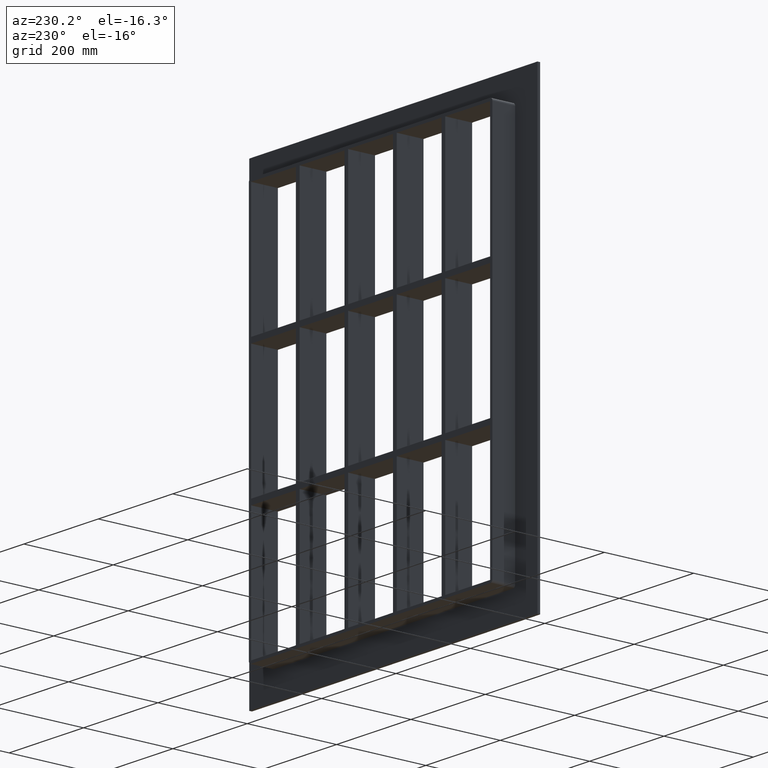
[diagram: clean part render]
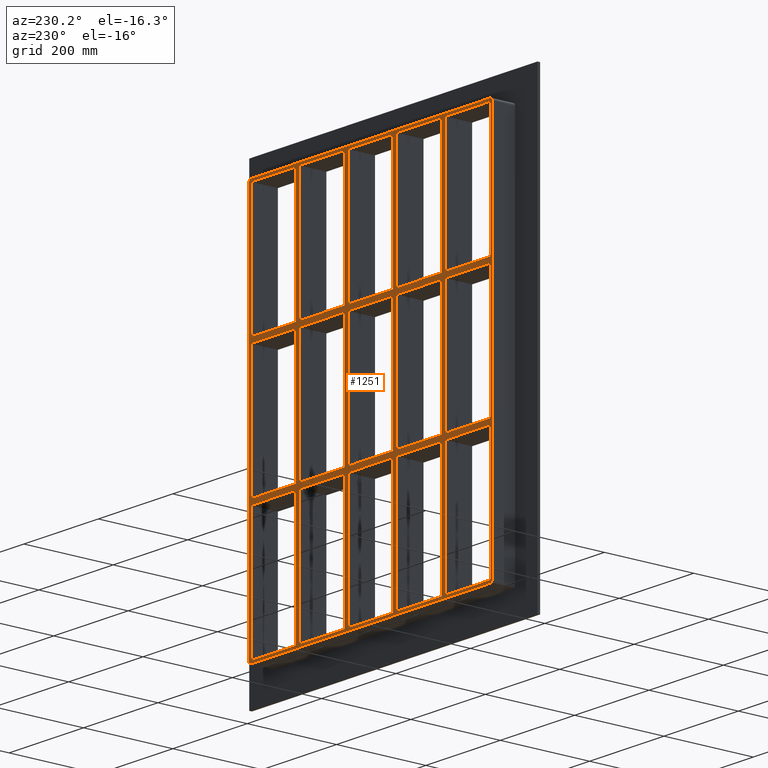
[diagram: same view with one face highlighted and labeled with its STEP entity id]
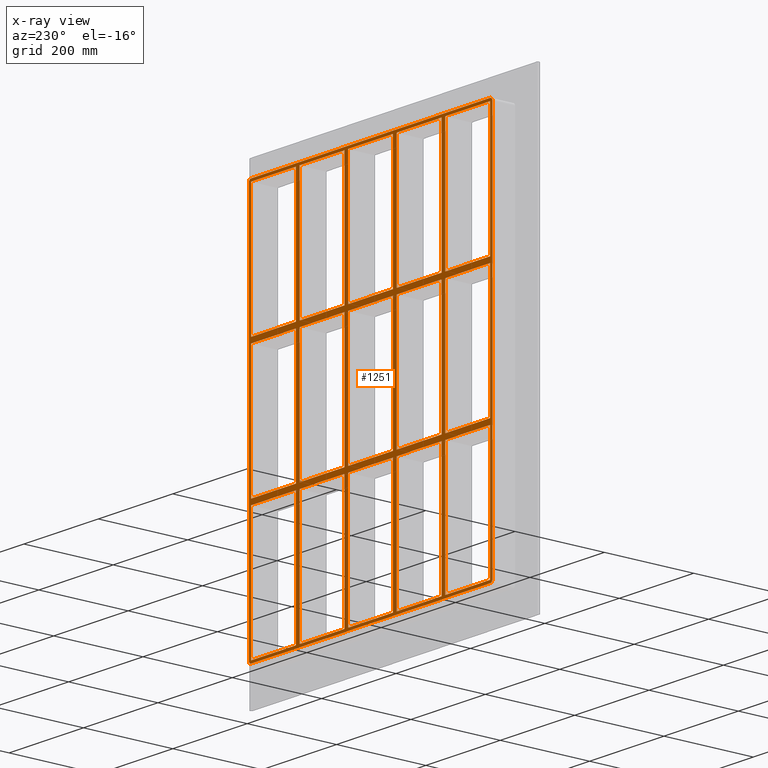
[diagram: x-ray of the same camera — body ghosted, the highlighted face saturated]
A machine part, auxiliary view. The second image highlights one B-rep face of the part: STEP entity #1251.
The next image is the same camera in x-ray: the body ghosted, the highlighted face saturated — about 0% of this face is hidden behind the body in this view.
In plain terms, the highlighted planar face has unit normal (0, 1, 0).
Its self-contained STEP definition (entity closure, byte-faithful):
#75=CARTESIAN_POINT('',(-200.75000000000128,57.0,138.99999999999068));
#76=VERTEX_POINT('',#75);
#91=CARTESIAN_POINT('',(-321.24999999999955,57.0,138.99999999999068));
#92=VERTEX_POINT('',#91);
#99=CARTESIAN_POINT('',(-200.75000000000136,57.0,138.99999999999068));
#100=DIRECTION('',(-1.0,0.0,0.0));
#101=VECTOR('',#100,120.49999999999818);
#102=LINE('',#99,#101);
#103=EDGE_CURVE('',#76,#92,#102,.T.);
#115=CARTESIAN_POINT('',(-70.250000000001265,57.0,138.99999999999071));
#116=VERTEX_POINT('',#115);
#131=CARTESIAN_POINT('',(-190.75000000000728,57.0,138.99999999999071));
#132=VERTEX_POINT('',#131);
#139=CARTESIAN_POINT('',(-70.250000000001251,57.0,138.99999999999071));
#140=DIRECTION('',(-1.0,0.0,0.0));
#141=VECTOR('',#140,120.50000000000603);
#142=LINE('',#139,#141);
#143=EDGE_CURVE('',#116,#132,#142,.T.);
#155=CARTESIAN_POINT('',(60.249999999998742,57.0,138.99999999999071));
#156=VERTEX_POINT('',#155);
#171=CARTESIAN_POINT('',(-60.250000000007304,57.0,138.99999999999071));
#172=VERTEX_POINT('',#171);
#179=CARTESIAN_POINT('',(60.249999999998749,57.0,138.99999999999071));
#180=DIRECTION('',(-1.0,0.0,0.0));
#181=VECTOR('',#180,120.50000000000603);
#182=LINE('',#179,#181);
#183=EDGE_CURVE('',#156,#172,#182,.T.);
#193=CARTESIAN_POINT('',(200.74999999999278,57.0,138.99999999999071));
#194=VERTEX_POINT('',#193);
#203=CARTESIAN_POINT('',(321.25,57.0,138.99999999999073));
#204=VERTEX_POINT('',#203);
#205=CARTESIAN_POINT('',(321.25,57.0,138.99999999999073));
#206=DIRECTION('',(-1.0,0.0,0.0));
#207=VECTOR('',#206,120.50000000000722);
#208=LINE('',#205,#207);
#209=EDGE_CURVE('',#204,#194,#208,.T.);
#235=CARTESIAN_POINT('',(190.74999999999875,57.0,138.99999999999071));
#236=VERTEX_POINT('',#235);
#251=CARTESIAN_POINT('',(70.249999999992738,57.0,138.99999999999071));
#252=VERTEX_POINT('',#251);
#259=CARTESIAN_POINT('',(190.74999999999875,57.0,138.99999999999073));
#260=DIRECTION('',(-1.0,0.0,0.0));
#261=VECTOR('',#260,120.50000000000603);
#262=LINE('',#259,#261);
#263=EDGE_CURVE('',#236,#252,#262,.T.);
#273=CARTESIAN_POINT('',(-200.75000000000128,57.0,150.99999999999994));
#274=VERTEX_POINT('',#273);
#283=CARTESIAN_POINT('',(-321.24999999999955,57.0,150.99999999999994));
#284=VERTEX_POINT('',#283);
#285=CARTESIAN_POINT('',(-321.24999999999955,57.0,150.99999999999994));
#286=DIRECTION('',(1.0,0.0,0.0));
#287=VECTOR('',#286,120.49999999999829);
#288=LINE('',#285,#287);
#289=EDGE_CURVE('',#284,#274,#288,.T.);
#315=CARTESIAN_POINT('',(200.74999999999278,57.0,150.99999999999994));
#316=VERTEX_POINT('',#315);
#331=CARTESIAN_POINT('',(321.25,57.0,150.99999999999994));
#332=VERTEX_POINT('',#331);
#339=CARTESIAN_POINT('',(200.74999999999284,57.0,150.99999999999994));
#340=DIRECTION('',(1.0,0.0,0.0));
#341=VECTOR('',#340,120.50000000000716);
#342=LINE('',#339,#341);
#343=EDGE_CURVE('',#316,#332,#342,.T.);
#353=CARTESIAN_POINT('',(-70.250000000001265,57.0,150.99999999999994));
#354=VERTEX_POINT('',#353);
#363=CARTESIAN_POINT('',(-190.75000000000728,57.0,150.99999999999994));
#364=VERTEX_POINT('',#363);
#365=CARTESIAN_POINT('',(-190.75000000000725,57.0,150.99999999999994));
#366=DIRECTION('',(1.0,0.0,0.0));
#367=VECTOR('',#366,120.500000000006);
#368=LINE('',#365,#367);
#369=EDGE_CURVE('',#364,#354,#368,.T.);
#393=CARTESIAN_POINT('',(60.249999999998707,57.0,150.99999999999994));
#394=VERTEX_POINT('',#393);
#403=CARTESIAN_POINT('',(-60.250000000007269,57.0,150.99999999999994));
#404=VERTEX_POINT('',#403);
#405=CARTESIAN_POINT('',(-60.250000000007219,57.0,150.99999999999994));
#406=DIRECTION('',(1.0,0.0,0.0));
#407=VECTOR('',#406,120.50000000000597);
#408=LINE('',#405,#407);
#409=EDGE_CURVE('',#404,#394,#408,.T.);
#433=CARTESIAN_POINT('',(190.74999999999875,57.0,150.99999999999994));
#434=VERTEX_POINT('',#433);
#443=CARTESIAN_POINT('',(70.249999999992738,57.0,150.99999999999994));
#444=VERTEX_POINT('',#443);
#445=CARTESIAN_POINT('',(70.249999999992781,57.0,150.99999999999994));
#446=DIRECTION('',(1.0,0.0,0.0));
#447=VECTOR('',#446,120.50000000000597);
#448=LINE('',#445,#447);
#449=EDGE_CURVE('',#444,#434,#448,.T.);
#474=CARTESIAN_POINT('',(-321.24999999999994,57.0,429.00000000000006));
#475=VERTEX_POINT('',#474);
#476=CARTESIAN_POINT('',(-321.25,57.0,429.00000000000011));
#477=DIRECTION('',(0.0,0.0,-1.0));
#478=VECTOR('',#477,278.00000000000011);
#479=LINE('',#476,#478);
#480=EDGE_CURVE('',#475,#284,#479,.T.);
#505=CARTESIAN_POINT('',(321.25,57.0,-139.00000000000006));
#506=VERTEX_POINT('',#505);
#507=CARTESIAN_POINT('',(321.25000000000006,57.0,-139.00000000000006));
#508=DIRECTION('',(0.0,0.0,1.0));
#509=VECTOR('',#508,277.99999999999079);
#510=LINE('',#507,#509);
#511=EDGE_CURVE('',#506,#204,#510,.T.);
#544=CARTESIAN_POINT('',(321.25000000000006,57.0,429.00000000000006));
#545=VERTEX_POINT('',#544);
#552=CARTESIAN_POINT('',(321.25000000000006,57.0,150.99999999999994));
#553=DIRECTION('',(0.0,0.0,1.0));
#554=VECTOR('',#553,278.00000000000011);
#555=LINE('',#552,#554);
#556=EDGE_CURVE('',#332,#545,#555,.T.);
#575=CARTESIAN_POINT('',(190.74999999999875,57.0,429.00000000000006));
#576=VERTEX_POINT('',#575);
#583=CARTESIAN_POINT('',(190.74999999999875,57.0,150.99999999999994));
#584=DIRECTION('',(0.0,0.0,1.0));
#585=VECTOR('',#584,278.00000000000011);
#586=LINE('',#583,#585);
#587=EDGE_CURVE('',#434,#576,#586,.T.);
#598=CARTESIAN_POINT('',(200.74999999999278,57.0,429.00000000000006));
#599=VERTEX_POINT('',#598);
#600=CARTESIAN_POINT('',(200.74999999999278,57.0,429.00000000000006));
#601=DIRECTION('',(0.0,0.0,-1.0));
#602=VECTOR('',#601,278.00000000000011);
#603=LINE('',#600,#602);
#604=EDGE_CURVE('',#599,#316,#603,.T.);
#637=CARTESIAN_POINT('',(60.249999999998707,57.0,429.00000000000006));
#638=VERTEX_POINT('',#637);
#645=CARTESIAN_POINT('',(60.249999999998728,57.0,150.99999999999994));
#646=DIRECTION('',(0.0,0.0,1.0));
#647=VECTOR('',#646,278.00000000000011);
#648=LINE('',#645,#647);
#649=EDGE_CURVE('',#394,#638,#648,.T.);
#660=CARTESIAN_POINT('',(70.249999999992738,57.0,429.00000000000006));
#661=VERTEX_POINT('',#660);
#662=CARTESIAN_POINT('',(70.249999999992738,57.0,429.00000000000006));
#663=DIRECTION('',(0.0,0.0,-1.0));
#664=VECTOR('',#663,278.00000000000011);
#665=LINE('',#662,#664);
#666=EDGE_CURVE('',#661,#444,#665,.T.);
#699=CARTESIAN_POINT('',(-70.250000000001307,57.0,429.00000000000006));
#700=VERTEX_POINT('',#699);
#707=CARTESIAN_POINT('',(-70.250000000001265,57.0,150.99999999999994));
#708=DIRECTION('',(0.0,0.0,1.0));
#709=VECTOR('',#708,278.00000000000011);
#710=LINE('',#707,#709);
#711=EDGE_CURVE('',#354,#700,#710,.T.);
#722=CARTESIAN_POINT('',(-60.250000000007269,57.0,429.00000000000006));
#723=VERTEX_POINT('',#722);
#724=CARTESIAN_POINT('',(-60.250000000007269,57.0,429.00000000000006));
#725=DIRECTION('',(0.0,0.0,-1.0));
#726=VECTOR('',#725,278.00000000000011);
#727=LINE('',#724,#726);
#728=EDGE_CURVE('',#723,#404,#727,.T.);
#761=CARTESIAN_POINT('',(-200.75000000000131,57.0,429.00000000000006));
#762=VERTEX_POINT('',#761);
#769=CARTESIAN_POINT('',(-200.75000000000131,57.0,150.99999999999994));
#770=DIRECTION('',(0.0,0.0,1.0));
#771=VECTOR('',#770,278.00000000000011);
#772=LINE('',#769,#771);
#773=EDGE_CURVE('',#274,#762,#772,.T.);
#784=CARTESIAN_POINT('',(-200.75000000000125,57.0,-139.00000000000006));
#785=VERTEX_POINT('',#784);
#786=CARTESIAN_POINT('',(-200.75000000000128,57.0,-139.00000000000006));
#787=DIRECTION('',(0.0,0.0,1.0));
#788=VECTOR('',#787,277.99999999999068);
#789=LINE('',#786,#788);
#790=EDGE_CURVE('',#785,#76,#789,.T.);
#815=CARTESIAN_POINT('',(-190.75000000000728,57.0,429.00000000000006));
#816=VERTEX_POINT('',#815);
#817=CARTESIAN_POINT('',(-190.75000000000728,57.0,429.00000000000006));
#818=DIRECTION('',(0.0,0.0,-1.0));
#819=VECTOR('',#818,278.00000000000011);
#820=LINE('',#817,#819);
#821=EDGE_CURVE('',#816,#364,#820,.T.);
#840=CARTESIAN_POINT('',(-7.118245E-014,57.0,7.830186E-014));
#841=DIRECTION('',(0.0,1.0,0.0));
#842=DIRECTION('',(0.0,0.0,1.0));
#843=AXIS2_PLACEMENT_3D('',#840,#841,#842);
#844=PLANE('',#843);
#845=CARTESIAN_POINT('',(321.25,57.0,-435.0));
#846=VERTEX_POINT('',#845);
#847=CARTESIAN_POINT('',(327.24999999999994,57.0,-428.99999999999989));
#848=VERTEX_POINT('',#847);
#849=CARTESIAN_POINT('',(321.25,57.0,-428.99999999999989));
#850=DIRECTION('',(0.0,-1.0,0.0));
#851=DIRECTION('',(0.707106781186539,0.0,-0.707106781186556));
#852=AXIS2_PLACEMENT_3D('',#849,#850,#851);
#853=CIRCLE('',#852,6.000000000000001);
#854=EDGE_CURVE('',#846,#848,#853,.T.);
#855=ORIENTED_EDGE('',*,*,#854,.F.);
#856=CARTESIAN_POINT('',(-321.25,57.0,-435.0));
#857=VERTEX_POINT('',#856);
#858=CARTESIAN_POINT('',(321.25,57.0,-435.0));
#859=DIRECTION('',(-1.0,0.0,0.0));
#860=VECTOR('',#859,642.5);
#861=LINE('',#858,#860);
#862=EDGE_CURVE('',#846,#857,#861,.T.);
#863=ORIENTED_EDGE('',*,*,#862,.T.);
#864=CARTESIAN_POINT('',(-327.25000000000011,57.0,-429.00000000000006));
#865=VERTEX_POINT('',#864);
#866=CARTESIAN_POINT('',(-321.25,57.0,-429.00000000000006));
#867=DIRECTION('',(0.0,-1.0,0.0));
#868=DIRECTION('',(-0.707106781186556,0.0,-0.707106781186539));
#869=AXIS2_PLACEMENT_3D('',#866,#867,#868);
#870=CIRCLE('',#869,6.000000000000001);
#871=EDGE_CURVE('',#865,#857,#870,.T.);
#872=ORIENTED_EDGE('',*,*,#871,.F.);
#873=CARTESIAN_POINT('',(-327.25000000000011,57.0,429.00000000000006));
#874=VERTEX_POINT('',#873);
#875=CARTESIAN_POINT('',(-327.25000000000011,57.0,-429.00000000000006));
#876=DIRECTION('',(0.0,0.0,1.0));
#877=VECTOR('',#876,858.0);
#878=LINE('',#875,#877);
#879=EDGE_CURVE('',#865,#874,#878,.T.);
#880=ORIENTED_EDGE('',*,*,#879,.T.);
#881=CARTESIAN_POINT('',(-321.25000000000011,57.0,435.00000000000011));
#882=VERTEX_POINT('',#881);
#883=CARTESIAN_POINT('',(-321.25000000000011,57.0,429.00000000000006));
#884=DIRECTION('',(0.0,-1.0,0.0));
#885=DIRECTION('',(-0.707106781186539,0.0,0.707106781186556));
#886=AXIS2_PLACEMENT_3D('',#883,#884,#885);
#887=CIRCLE('',#886,6.000000000000001);
#888=EDGE_CURVE('',#882,#874,#887,.T.);
#889=ORIENTED_EDGE('',*,*,#888,.F.);
#890=CARTESIAN_POINT('',(321.24999999999989,57.0,435.00000000000011));
#891=VERTEX_POINT('',#890);
#892=CARTESIAN_POINT('',(-321.25000000000017,57.0,435.00000000000011));
#893=DIRECTION('',(1.0,0.0,0.0));
#894=VECTOR('',#893,642.5);
#895=LINE('',#892,#894);
#896=EDGE_CURVE('',#882,#891,#895,.T.);
#897=ORIENTED_EDGE('',*,*,#896,.T.);
#898=CARTESIAN_POINT('',(327.24999999999994,57.0,429.00000000000011));
#899=VERTEX_POINT('',#898);
#900=CARTESIAN_POINT('',(321.24999999999989,57.0,429.00000000000011));
#901=DIRECTION('',(0.0,-1.0,0.0));
#902=DIRECTION('',(0.707106781186547,0.0,0.707106781186547));
#903=AXIS2_PLACEMENT_3D('',#900,#901,#902);
#904=CIRCLE('',#903,6.0);
#905=EDGE_CURVE('',#899,#891,#904,.T.);
#906=ORIENTED_EDGE('',*,*,#905,.F.);
#907=CARTESIAN_POINT('',(327.24999999999994,57.0,429.00000000000011));
#908=DIRECTION('',(0.0,0.0,-1.0));
#909=VECTOR('',#908,858.0);
#910=LINE('',#907,#909);
#911=EDGE_CURVE('',#899,#848,#910,.T.);
#912=ORIENTED_EDGE('',*,*,#911,.T.);
#913=EDGE_LOOP('',(#855,#863,#872,#880,#889,#897,#906,#912));
#914=FACE_OUTER_BOUND('',#913,.T.);
#915=CARTESIAN_POINT('',(-321.24999999999955,57.0,-139.00000000000006));
#916=VERTEX_POINT('',#915);
#917=CARTESIAN_POINT('',(-321.25,57.0,138.99999999999068));
#918=DIRECTION('',(0.0,0.0,-1.0));
#919=VECTOR('',#918,277.99999999999073);
#920=LINE('',#917,#919);
#921=EDGE_CURVE('',#92,#916,#920,.T.);
#922=ORIENTED_EDGE('',*,*,#921,.T.);
#923=CARTESIAN_POINT('',(-321.24999999999955,57.0,-139.00000000000006));
#924=DIRECTION('',(1.0,0.0,0.0));
#925=VECTOR('',#924,120.49999999999835);
#926=LINE('',#923,#925);
#927=EDGE_CURVE('',#916,#785,#926,.T.);
#928=ORIENTED_EDGE('',*,*,#927,.T.);
#929=ORIENTED_EDGE('',*,*,#790,.T.);
#930=ORIENTED_EDGE('',*,*,#103,.T.);
#931=EDGE_LOOP('',(#922,#928,#929,#930));
#932=FACE_BOUND('',#931,.T.);
#933=ORIENTED_EDGE('',*,*,#556,.T.);
#934=CARTESIAN_POINT('',(321.25000000000011,57.0,429.00000000000006));
#935=DIRECTION('',(-1.0,0.0,0.0));
#936=VECTOR('',#935,120.50000000000736);
#937=LINE('',#934,#936);
#938=EDGE_CURVE('',#545,#599,#937,.T.);
#939=ORIENTED_EDGE('',*,*,#938,.T.);
#940=ORIENTED_EDGE('',*,*,#604,.T.);
#941=ORIENTED_EDGE('',*,*,#343,.T.);
#942=EDGE_LOOP('',(#933,#939,#940,#941));
#943=FACE_BOUND('',#942,.T.);
#944=ORIENTED_EDGE('',*,*,#587,.T.);
#945=CARTESIAN_POINT('',(190.74999999999872,57.0,429.00000000000006));
#946=DIRECTION('',(-1.0,0.0,0.0));
#947=VECTOR('',#946,120.50000000000597);
#948=LINE('',#945,#947);
#949=EDGE_CURVE('',#576,#661,#948,.T.);
#950=ORIENTED_EDGE('',*,*,#949,.T.);
#951=ORIENTED_EDGE('',*,*,#666,.T.);
#952=ORIENTED_EDGE('',*,*,#449,.T.);
#953=EDGE_LOOP('',(#944,#950,#951,#952));
#954=FACE_BOUND('',#953,.T.);
#955=ORIENTED_EDGE('',*,*,#649,.T.);
#956=CARTESIAN_POINT('',(60.249999999998721,57.0,429.00000000000006));
#957=DIRECTION('',(-1.0,0.0,0.0));
#958=VECTOR('',#957,120.50000000000598);
#959=LINE('',#956,#958);
#960=EDGE_CURVE('',#638,#723,#959,.T.);
#961=ORIENTED_EDGE('',*,*,#960,.T.);
#962=ORIENTED_EDGE('',*,*,#728,.T.);
#963=ORIENTED_EDGE('',*,*,#409,.T.);
#964=EDGE_LOOP('',(#955,#961,#962,#963));
#965=FACE_BOUND('',#964,.T.);
#966=ORIENTED_EDGE('',*,*,#711,.T.);
#967=CARTESIAN_POINT('',(-70.250000000001293,57.0,429.00000000000006));
#968=DIRECTION('',(-1.0,0.0,0.0));
#969=VECTOR('',#968,120.50000000000598);
#970=LINE('',#967,#969);
#971=EDGE_CURVE('',#700,#816,#970,.T.);
#972=ORIENTED_EDGE('',*,*,#971,.T.);
#973=ORIENTED_EDGE('',*,*,#821,.T.);
#974=ORIENTED_EDGE('',*,*,#369,.T.);
#975=EDGE_LOOP('',(#966,#972,#973,#974));
#976=FACE_BOUND('',#975,.T.);
#977=ORIENTED_EDGE('',*,*,#209,.T.);
#978=CARTESIAN_POINT('',(200.74999999999278,57.0,-139.00000000000006));
#979=VERTEX_POINT('',#978);
#980=CARTESIAN_POINT('',(200.74999999999278,57.0,138.99999999999073));
#981=DIRECTION('',(0.0,0.0,-1.0));
#982=VECTOR('',#981,277.99999999999079);
#983=LINE('',#980,#982);
#984=EDGE_CURVE('',#194,#979,#983,.T.);
#985=ORIENTED_EDGE('',*,*,#984,.T.);
#986=CARTESIAN_POINT('',(200.74999999999284,57.0,-139.00000000000006));
#987=DIRECTION('',(1.0,0.0,0.0));
#988=VECTOR('',#987,120.50000000000716);
#989=LINE('',#986,#988);
#990=EDGE_CURVE('',#979,#506,#989,.T.);
#991=ORIENTED_EDGE('',*,*,#990,.T.);
#992=ORIENTED_EDGE('',*,*,#511,.T.);
#993=EDGE_LOOP('',(#977,#985,#991,#992));
#994=FACE_BOUND('',#993,.T.);
#995=ORIENTED_EDGE('',*,*,#263,.T.);
#996=CARTESIAN_POINT('',(70.249999999992738,57.0,-139.00000000000006));
#997=VERTEX_POINT('',#996);
#998=CARTESIAN_POINT('',(70.249999999992738,57.0,138.99999999999073));
#999=DIRECTION('',(0.0,0.0,-1.0));
#1000=VECTOR('',#999,277.99999999999079);
#1001=LINE('',#998,#1000);
#1002=EDGE_CURVE('',#252,#997,#1001,.T.);
#1003=ORIENTED_EDGE('',*,*,#1002,.T.);
#1004=CARTESIAN_POINT('',(190.74999999999878,57.0,-139.00000000000006));
#1005=VERTEX_POINT('',#1004);
#1006=CARTESIAN_POINT('',(70.249999999992781,57.0,-139.00000000000006));
#1007=DIRECTION('',(1.0,0.0,0.0));
#1008=VECTOR('',#1007,120.50000000000597);
#1009=LINE('',#1006,#1008);
#1010=EDGE_CURVE('',#997,#1005,#1009,.T.);
#1011=ORIENTED_EDGE('',*,*,#1010,.T.);
#1012=CARTESIAN_POINT('',(190.74999999999878,57.0,-139.00000000000006));
#1013=DIRECTION('',(0.0,0.0,1.0));
#1014=VECTOR('',#1013,277.99999999999068);
#1015=LINE('',#1012,#1014);
#1016=EDGE_CURVE('',#1005,#236,#1015,.T.);
#1017=ORIENTED_EDGE('',*,*,#1016,.T.);
#1018=EDGE_LOOP('',(#995,#1003,#1011,#1017));
#1019=FACE_BOUND('',#1018,.T.);
#1020=ORIENTED_EDGE('',*,*,#183,.T.);
#1021=CARTESIAN_POINT('',(-60.250000000007269,57.0,-139.00000000000006));
#1022=VERTEX_POINT('',#1021);
#1023=CARTESIAN_POINT('',(-60.250000000007269,57.0,138.99999999999068));
#1024=DIRECTION('',(0.0,0.0,-1.0));
#1025=VECTOR('',#1024,277.99999999999073);
#1026=LINE('',#1023,#1025);
#1027=EDGE_CURVE('',#172,#1022,#1026,.T.);
#1028=ORIENTED_EDGE('',*,*,#1027,.T.);
#1029=CARTESIAN_POINT('',(60.249999999998749,57.0,-139.00000000000006));
#1030=VERTEX_POINT('',#1029);
#1031=CARTESIAN_POINT('',(-60.250000000007219,57.0,-139.00000000000006));
#1032=DIRECTION('',(1.0,0.0,0.0));
#1033=VECTOR('',#1032,120.50000000000603);
#1034=LINE('',#1031,#1033);
#1035=EDGE_CURVE('',#1022,#1030,#1034,.T.);
#1036=ORIENTED_EDGE('',*,*,#1035,.T.);
#1037=CARTESIAN_POINT('',(60.249999999998757,57.0,-139.00000000000006));
#1038=DIRECTION('',(0.0,0.0,1.0));
#1039=VECTOR('',#1038,277.99999999999068);
#1040=LINE('',#1037,#1039);
#1041=EDGE_CURVE('',#1030,#156,#1040,.T.);
#1042=ORIENTED_EDGE('',*,*,#1041,.T.);
#1043=EDGE_LOOP('',(#1020,#1028,#1036,#1042));
#1044=FACE_BOUND('',#1043,.T.);
#1045=ORIENTED_EDGE('',*,*,#143,.T.);
#1046=CARTESIAN_POINT('',(-190.75000000000728,57.0,-139.00000000000006));
#1047=VERTEX_POINT('',#1046);
#1048=CARTESIAN_POINT('',(-190.75000000000728,57.0,138.99999999999073));
#1049=DIRECTION('',(0.0,0.0,-1.0));
#1050=VECTOR('',#1049,277.99999999999079);
#1051=LINE('',#1048,#1050);
#1052=EDGE_CURVE('',#132,#1047,#1051,.T.);
#1053=ORIENTED_EDGE('',*,*,#1052,.T.);
#1054=CARTESIAN_POINT('',(-70.250000000001251,57.0,-139.00000000000006));
#1055=VERTEX_POINT('',#1054);
#1056=CARTESIAN_POINT('',(-190.75000000000725,57.0,-139.00000000000006));
#1057=DIRECTION('',(1.0,0.0,0.0));
#1058=VECTOR('',#1057,120.500000000006);
#1059=LINE('',#1056,#1058);
#1060=EDGE_CURVE('',#1047,#1055,#1059,.T.);
#1061=ORIENTED_EDGE('',*,*,#1060,.T.);
#1062=CARTESIAN_POINT('',(-70.250000000001251,57.0,-139.00000000000006));
#1063=DIRECTION('',(0.0,0.0,1.0));
#1064=VECTOR('',#1063,277.99999999999068);
#1065=LINE('',#1062,#1064);
#1066=EDGE_CURVE('',#1055,#116,#1065,.T.);
#1067=ORIENTED_EDGE('',*,*,#1066,.T.);
#1068=EDGE_LOOP('',(#1045,#1053,#1061,#1067));
#1069=FACE_BOUND('',#1068,.T.);
#1070=CARTESIAN_POINT('',(-321.24999999999955,57.0,-151.00000000000932));
#1071=VERTEX_POINT('',#1070);
#1072=CARTESIAN_POINT('',(-321.24999999999994,57.0,-429.00000000000006));
#1073=VERTEX_POINT('',#1072);
#1074=CARTESIAN_POINT('',(-321.25,57.0,-151.00000000000932));
#1075=DIRECTION('',(0.0,0.0,-1.0));
#1076=VECTOR('',#1075,277.99999999999073);
#1077=LINE('',#1074,#1076);
#1078=EDGE_CURVE('',#1071,#1073,#1077,.T.);
#1079=ORIENTED_EDGE('',*,*,#1078,.T.);
#1080=CARTESIAN_POINT('',(-200.75000000000125,57.0,-429.00000000000006));
#1081=VERTEX_POINT('',#1080);
#1082=CARTESIAN_POINT('',(-321.24999999999994,57.0,-429.00000000000006));
#1083=DIRECTION('',(1.0,0.0,0.0));
#1084=VECTOR('',#1083,120.49999999999869);
#1085=LINE('',#1082,#1084);
#1086=EDGE_CURVE('',#1073,#1081,#1085,.T.);
#1087=ORIENTED_EDGE('',*,*,#1086,.T.);
#1088=CARTESIAN_POINT('',(-200.75000000000125,57.0,-151.00000000000929));
#1089=VERTEX_POINT('',#1088);
#1090=CARTESIAN_POINT('',(-200.75000000000125,57.0,-429.00000000000006));
#1091=DIRECTION('',(0.0,0.0,1.0));
#1092=VECTOR('',#1091,277.99999999999073);
#1093=LINE('',#1090,#1092);
#1094=EDGE_CURVE('',#1081,#1089,#1093,.T.);
#1095=ORIENTED_EDGE('',*,*,#1094,.T.);
#1096=CARTESIAN_POINT('',(-200.75000000000125,57.0,-151.00000000000932));
#1097=DIRECTION('',(-1.0,0.0,0.0));
#1098=VECTOR('',#1097,120.49999999999829);
#1099=LINE('',#1096,#1098);
#1100=EDGE_CURVE('',#1089,#1071,#1099,.T.);
#1101=ORIENTED_EDGE('',*,*,#1100,.T.);
#1102=EDGE_LOOP('',(#1079,#1087,#1095,#1101));
#1103=FACE_BOUND('',#1102,.T.);
#1104=CARTESIAN_POINT('',(-70.250000000001222,57.0,-429.00000000000006));
#1105=VERTEX_POINT('',#1104);
#1106=CARTESIAN_POINT('',(-70.250000000001251,57.0,-151.00000000000929));
#1107=VERTEX_POINT('',#1106);
#1108=CARTESIAN_POINT('',(-70.250000000001222,57.0,-429.00000000000006));
#1109=DIRECTION('',(0.0,0.0,1.0));
#1110=VECTOR('',#1109,277.99999999999079);
#1111=LINE('',#1108,#1110);
#1112=EDGE_CURVE('',#1105,#1107,#1111,.T.);
#1113=ORIENTED_EDGE('',*,*,#1112,.T.);
#1114=CARTESIAN_POINT('',(-190.75000000000728,57.0,-151.00000000000929));
#1115=VERTEX_POINT('',#1114);
#1116=CARTESIAN_POINT('',(-70.250000000001251,57.0,-151.00000000000929));
#1117=DIRECTION('',(-1.0,0.0,0.0));
#1118=VECTOR('',#1117,120.50000000000603);
#1119=LINE('',#1116,#1118);
#1120=EDGE_CURVE('',#1107,#1115,#1119,.T.);
#1121=ORIENTED_EDGE('',*,*,#1120,.T.);
#1122=CARTESIAN_POINT('',(-190.75000000000728,57.0,-428.99999999998431));
#1123=VERTEX_POINT('',#1122);
#1124=CARTESIAN_POINT('',(-190.75000000000728,57.0,-151.00000000000927));
#1125=DIRECTION('',(0.0,0.0,-1.0));
#1126=VECTOR('',#1125,277.99999999997499);
#1127=LINE('',#1124,#1126);
#1128=EDGE_CURVE('',#1115,#1123,#1127,.T.);
#1129=ORIENTED_EDGE('',*,*,#1128,.T.);
#1130=CARTESIAN_POINT('',(-190.75000000000728,57.0,-429.00000000000006));
#1131=DIRECTION('',(1.0,0.0,0.0));
#1132=VECTOR('',#1131,120.50000000000605);
#1133=LINE('',#1130,#1132);
#1134=EDGE_CURVE('',#1123,#1105,#1133,.T.);
#1135=ORIENTED_EDGE('',*,*,#1134,.T.);
#1136=EDGE_LOOP('',(#1113,#1121,#1129,#1135));
#1137=FACE_BOUND('',#1136,.T.);
#1138=CARTESIAN_POINT('',(60.249999999998778,57.0,-429.00000000000006));
#1139=VERTEX_POINT('',#1138);
#1140=CARTESIAN_POINT('',(60.249999999998749,57.0,-151.00000000000929));
#1141=VERTEX_POINT('',#1140);
#1142=CARTESIAN_POINT('',(60.249999999998778,57.0,-429.00000000000006));
#1143=DIRECTION('',(0.0,0.0,1.0));
#1144=VECTOR('',#1143,277.99999999999079);
#1145=LINE('',#1142,#1144);
#1146=EDGE_CURVE('',#1139,#1141,#1145,.T.);
#1147=ORIENTED_EDGE('',*,*,#1146,.T.);
#1148=CARTESIAN_POINT('',(-60.250000000007269,57.0,-151.00000000000927));
#1149=VERTEX_POINT('',#1148);
#1150=CARTESIAN_POINT('',(60.249999999998749,57.0,-151.00000000000929));
#1151=DIRECTION('',(-1.0,0.0,0.0));
#1152=VECTOR('',#1151,120.50000000000603);
#1153=LINE('',#1150,#1152);
#1154=EDGE_CURVE('',#1141,#1149,#1153,.T.);
#1155=ORIENTED_EDGE('',*,*,#1154,.T.);
#1156=CARTESIAN_POINT('',(-60.250000000007269,57.0,-428.99999999998431));
#1157=VERTEX_POINT('',#1156);
#1158=CARTESIAN_POINT('',(-60.250000000007269,57.0,-151.00000000000927));
#1159=DIRECTION('',(0.0,0.0,-1.0));
#1160=VECTOR('',#1159,277.99999999997499);
#1161=LINE('',#1158,#1160);
#1162=EDGE_CURVE('',#1149,#1157,#1161,.T.);
#1163=ORIENTED_EDGE('',*,*,#1162,.T.);
#1164=CARTESIAN_POINT('',(-60.250000000007276,57.0,-429.00000000000006));
#1165=DIRECTION('',(1.0,0.0,0.0));
#1166=VECTOR('',#1165,120.50000000000605);
#1167=LINE('',#1164,#1166);
#1168=EDGE_CURVE('',#1157,#1139,#1167,.T.);
#1169=ORIENTED_EDGE('',*,*,#1168,.T.);
#1170=EDGE_LOOP('',(#1147,#1155,#1163,#1169));
#1171=FACE_BOUND('',#1170,.T.);
#1172=CARTESIAN_POINT('',(190.74999999999881,57.0,-429.00000000000006));
#1173=VERTEX_POINT('',#1172);
#1174=CARTESIAN_POINT('',(190.74999999999878,57.0,-151.00000000000927));
#1175=VERTEX_POINT('',#1174);
#1176=CARTESIAN_POINT('',(190.74999999999881,57.0,-429.00000000000006));
#1177=DIRECTION('',(0.0,0.0,1.0));
#1178=VECTOR('',#1177,277.99999999999079);
#1179=LINE('',#1176,#1178);
#1180=EDGE_CURVE('',#1173,#1175,#1179,.T.);
#1181=ORIENTED_EDGE('',*,*,#1180,.T.);
#1182=CARTESIAN_POINT('',(70.249999999992738,57.0,-151.00000000000927));
#1183=VERTEX_POINT('',#1182);
#1184=CARTESIAN_POINT('',(190.74999999999878,57.0,-151.00000000000927));
#1185=DIRECTION('',(-1.0,0.0,0.0));
#1186=VECTOR('',#1185,120.50000000000605);
#1187=LINE('',#1184,#1186);
#1188=EDGE_CURVE('',#1175,#1183,#1187,.T.);
#1189=ORIENTED_EDGE('',*,*,#1188,.T.);
#1190=CARTESIAN_POINT('',(70.249999999992738,57.0,-428.99999999998431));
#1191=VERTEX_POINT('',#1190);
#1192=CARTESIAN_POINT('',(70.249999999992738,57.0,-151.00000000000927));
#1193=DIRECTION('',(0.0,0.0,-1.0));
#1194=VECTOR('',#1193,277.99999999997499);
#1195=LINE('',#1192,#1194);
#1196=EDGE_CURVE('',#1183,#1191,#1195,.T.);
#1197=ORIENTED_EDGE('',*,*,#1196,.T.);
#1198=CARTESIAN_POINT('',(70.249999999992738,57.0,-429.00000000000006));
#1199=DIRECTION('',(1.0,0.0,0.0));
#1200=VECTOR('',#1199,120.50000000000607);
#1201=LINE('',#1198,#1200);
#1202=EDGE_CURVE('',#1191,#1173,#1201,.T.);
#1203=ORIENTED_EDGE('',*,*,#1202,.T.);
#1204=EDGE_LOOP('',(#1181,#1189,#1197,#1203));
#1205=FACE_BOUND('',#1204,.T.);
#1206=ORIENTED_EDGE('',*,*,#289,.T.);
#1207=ORIENTED_EDGE('',*,*,#773,.T.);
#1208=CARTESIAN_POINT('',(-200.75000000000131,57.0,429.00000000000006));
#1209=DIRECTION('',(-1.0,0.0,0.0));
#1210=VECTOR('',#1209,120.49999999999858);
#1211=LINE('',#1208,#1210);
#1212=EDGE_CURVE('',#762,#475,#1211,.T.);
#1213=ORIENTED_EDGE('',*,*,#1212,.T.);
#1214=ORIENTED_EDGE('',*,*,#480,.T.);
#1215=EDGE_LOOP('',(#1206,#1207,#1213,#1214));
#1216=FACE_BOUND('',#1215,.T.);
#1217=CARTESIAN_POINT('',(200.74999999999278,57.0,-428.99999999998431));
#1218=VERTEX_POINT('',#1217);
#1219=CARTESIAN_POINT('',(321.25000000000006,57.0,-429.00000000000006));
#1220=VERTEX_POINT('',#1219);
#1221=CARTESIAN_POINT('',(200.74999999999278,57.0,-429.00000000000006));
#1222=DIRECTION('',(1.0,0.0,0.0));
#1223=VECTOR('',#1222,120.50000000000728);
#1224=LINE('',#1221,#1223);
#1225=EDGE_CURVE('',#1218,#1220,#1224,.T.);
#1226=ORIENTED_EDGE('',*,*,#1225,.T.);
#1227=CARTESIAN_POINT('',(321.25,57.0,-151.00000000000927));
#1228=VERTEX_POINT('',#1227);
#1229=CARTESIAN_POINT('',(321.25000000000006,57.0,-429.00000000000006));
#1230=DIRECTION('',(0.0,0.0,1.0));
#1231=VECTOR('',#1230,277.99999999999079);
#1232=LINE('',#1229,#1231);
#1233=EDGE_CURVE('',#1220,#1228,#1232,.T.);
#1234=ORIENTED_EDGE('',*,*,#1233,.T.);
#1235=CARTESIAN_POINT('',(200.74999999999278,57.0,-151.00000000000927));
#1236=VERTEX_POINT('',#1235);
#1237=CARTESIAN_POINT('',(321.25,57.0,-151.00000000000927));
#1238=DIRECTION('',(-1.0,0.0,0.0));
#1239=VECTOR('',#1238,120.50000000000722);
#1240=LINE('',#1237,#1239);
#1241=EDGE_CURVE('',#1228,#1236,#1240,.T.);
#1242=ORIENTED_EDGE('',*,*,#1241,.T.);
#1243=CARTESIAN_POINT('',(200.74999999999278,57.0,-151.00000000000927));
#1244=DIRECTION('',(0.0,0.0,-1.0));
#1245=VECTOR('',#1244,277.99999999997499);
#1246=LINE('',#1243,#1245);
#1247=EDGE_CURVE('',#1236,#1218,#1246,.T.);
#1248=ORIENTED_EDGE('',*,*,#1247,.T.);
#1249=EDGE_LOOP('',(#1226,#1234,#1242,#1248));
#1250=FACE_BOUND('',#1249,.T.);
#1251=ADVANCED_FACE('',(#914,#932,#943,#954,#965,#976,#994,#1019,#1044,#1069,#1103,#1137,#1171,#1205,#1216,#1250),#844,.T.);